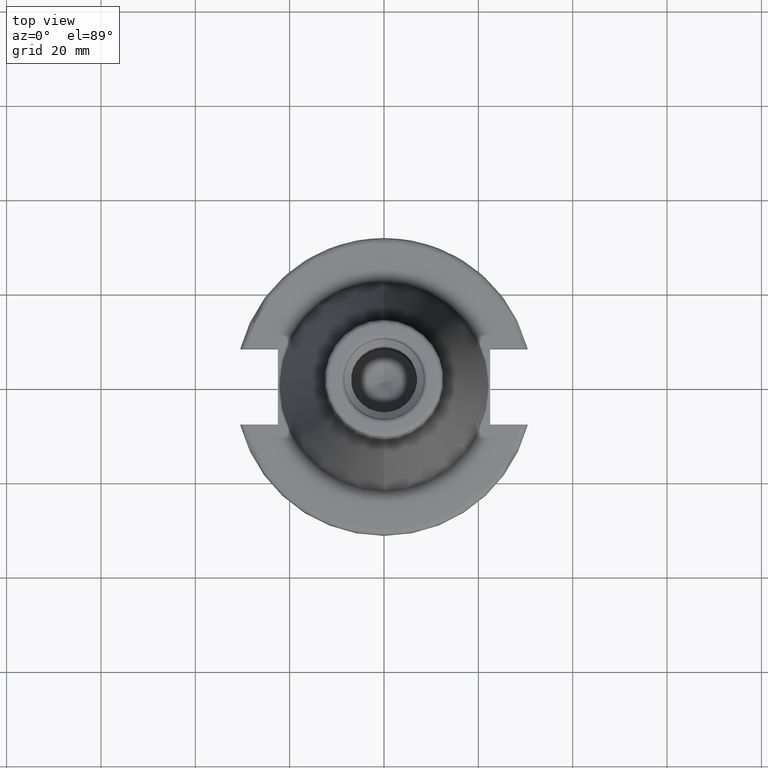
[diagram: clean part render]
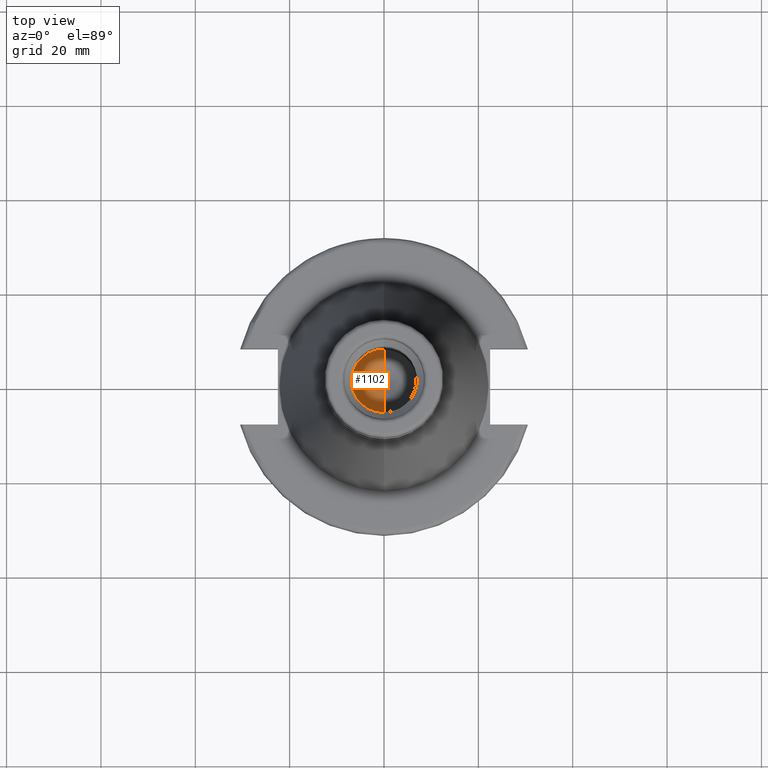
[diagram: same view with one face highlighted and labeled with its STEP entity id]
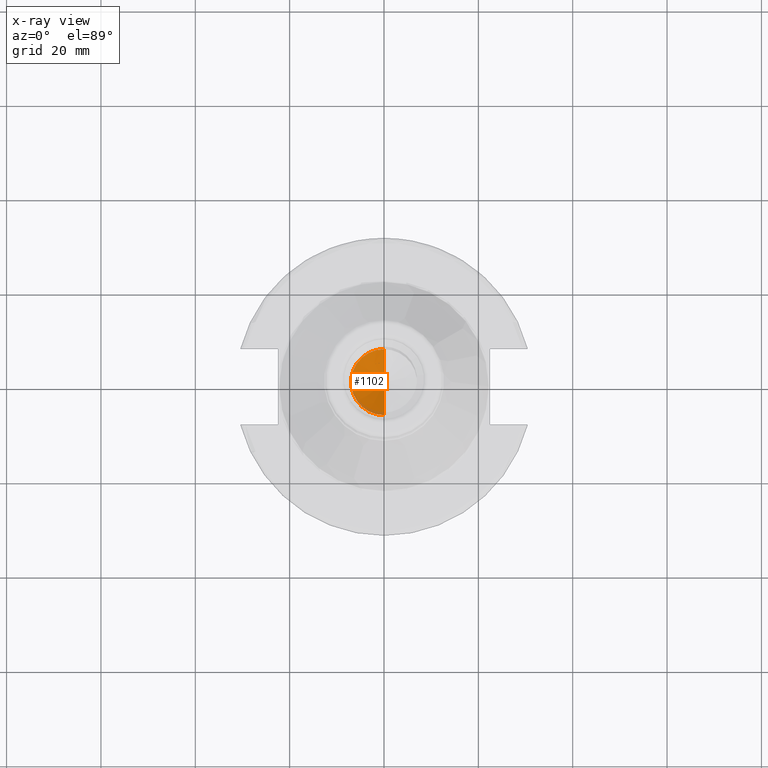
[diagram: x-ray of the same camera — body ghosted, the highlighted face saturated]
A machine part, top view. The second image highlights one B-rep face of the part: STEP entity #1102.
The next image is the same camera in x-ray: the body ghosted, the highlighted face saturated — about 5% of this face is hidden behind the body in this view.
In plain terms, the highlighted conical surface has half-angle 60 deg.
Its self-contained STEP definition (entity closure, byte-faithful):
#6=DIRECTION('',(0,-0.8660254037844,-0.5));
#7=VECTOR('',#6,8.082903768655);
#8=CARTESIAN_POINT('',(0,7,62.5));
#9=LINE('',#8,#7);
#10=DIRECTION('',(0,0.8660254037844,-0.5));
#11=VECTOR('',#10,8.082903768655);
#12=CARTESIAN_POINT('',(0,-7,62.5));
#13=LINE('',#12,#11);
#14=CARTESIAN_POINT('',(0,0,62.5));
#15=DIRECTION('',(0,0,1));
#16=DIRECTION('',(0,1,0));
#17=AXIS2_PLACEMENT_3D('',#14,#15,#16);
#877=CARTESIAN_POINT('',(0,7,62.5));
#878=CARTESIAN_POINT('',(0,0,58.45854811567));
#879=VERTEX_POINT('',#877);
#880=VERTEX_POINT('',#878);
#927=CARTESIAN_POINT('',(0,-7,62.5));
#928=VERTEX_POINT('',#927);
#1091=CARTESIAN_POINT('',(0,0,60.51968857668));
#1092=DIRECTION('',(0,0,1));
#1093=DIRECTION('',(0,1,0));
#1094=AXIS2_PLACEMENT_3D('',#1091,#1092,#1093);
#1095=CONICAL_SURFACE('',#1094,3.57,60);
#1096=ORIENTED_EDGE('',*,*,#1082,.T.);
#1097=ORIENTED_EDGE('',*,*,#1086,.F.);
#1099=ORIENTED_EDGE('',*,*,#1098,.F.);
#1100=EDGE_LOOP('',(#1096,#1097,#1099));
#1101=FACE_OUTER_BOUND('',#1100,.F.);
#1102=ADVANCED_FACE('',(#1101),#1095,.F.);
#18=CIRCLE('',#17,7);
#1082=EDGE_CURVE('',#879,#880,#9,.T.);
#1086=EDGE_CURVE('',#928,#880,#13,.T.);
#1098=EDGE_CURVE('',#879,#928,#18,.T.);